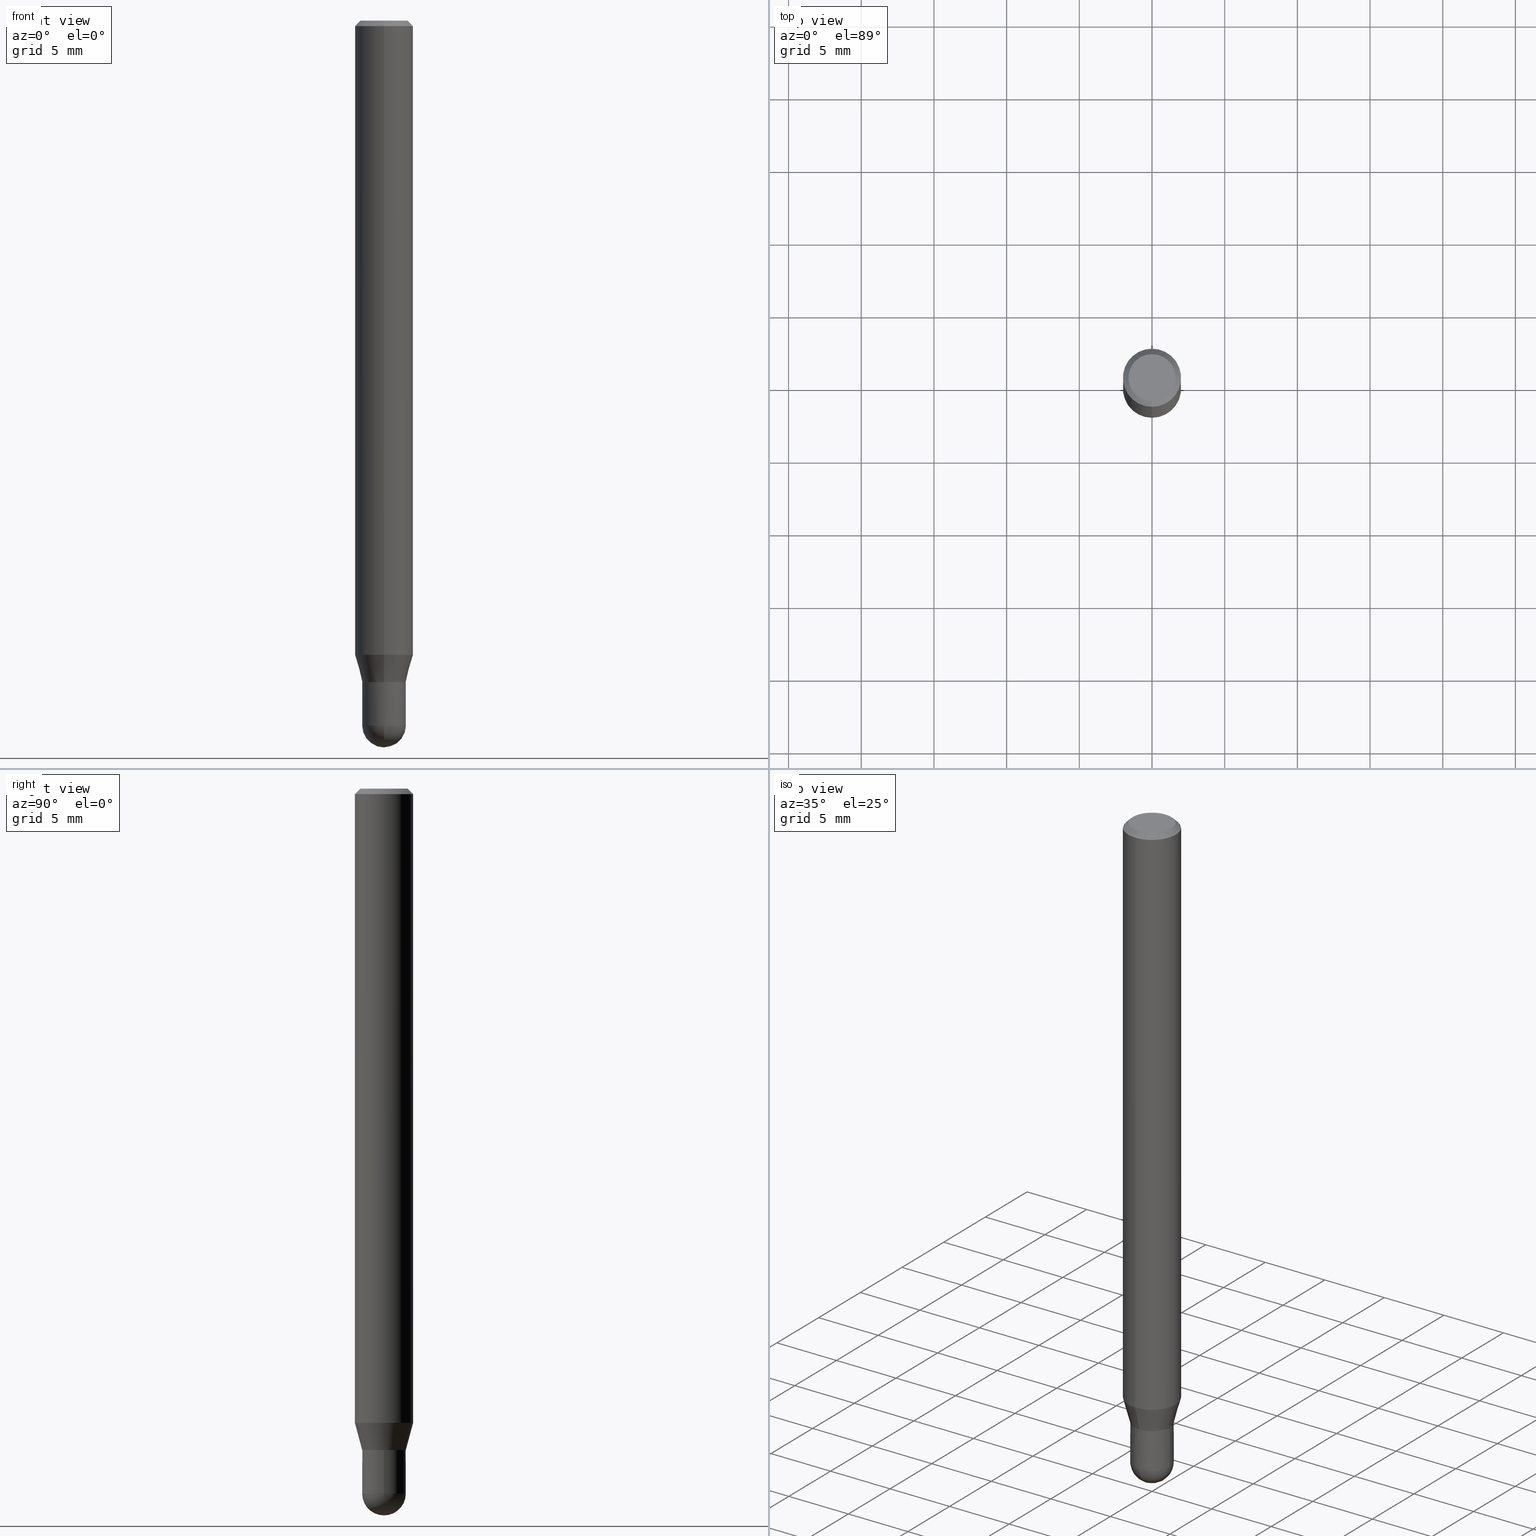
[diagram: canonical four-view strip — front | top / right | iso, engineering-drawing reading convention]
A machine part, canonical four-view strip (front | top / right | iso — engineering-drawing reading convention). The complete STEP part file that produces these views, byte-faithful:
ISO-10303-21;
HEADER;
FILE_DESCRIPTION (( 'STEP AP203' ),
    '1' );
FILE_NAME ('02043.STEP',
    '2024-03-07T19:59:55',
    ( '' ),
    ( '' ),
    'SwSTEP 2.0',
    'SolidWorks 2023',
    '' );
FILE_SCHEMA (( 'CONFIG_CONTROL_DESIGN' ));
ENDSEC;

DATA;
#1 = CARTESIAN_POINT ( 'NONE',  ( 0.000000000000000000, 0.000000000000000000, 0.000000000000000000 ) ) ;
#2 = CIRCLE ( 'NONE', #288, 0.07875000000000000056 ) ;
#3 = CIRCLE ( 'NONE', #26, 0.05904999999999999138 ) ;
#4 = VERTEX_POINT ( 'NONE', #284 ) ;
#5 = CARTESIAN_POINT ( 'NONE',  ( 4.664450655032605070E-29, -6.674040581803010003E-15, -1.909450000000000092 ) ) ;
#6 = EDGE_CURVE ( 'NONE', #66, #133, #134, .T. ) ;
#7 = ORIENTED_EDGE ( 'NONE', *, *, #352, .T. ) ;
#8 = DIRECTION ( 'NONE',  ( 1.000000000000000000, -6.982962677686266711E-15, 4.876176775795936353E-29 ) ) ;
#9 = VERTEX_POINT ( 'NONE', #174 ) ;
#10 = CARTESIAN_POINT ( 'NONE',  ( -4.123439461173292155E-16, -0.05905000000000611149, -1.790799999999999947 ) ) ;
#11 = PLANE ( 'NONE',  #382 ) ;
#12 = CARTESIAN_POINT ( 'NONE',  ( 0.000000000000000000, 0.000000000000000000, 0.000000000000000000 ) ) ;
#13 = ORIENTED_EDGE ( 'NONE', *, *, #223, .F. ) ;
#14 = CARTESIAN_POINT ( 'NONE',  ( 4.380568272519435501E-29, -6.254290522269726388E-15, -1.791300000000000114 ) ) ;
#15 = SECURITY_CLASSIFICATION_LEVEL ( 'unclassified' ) ;
#16 = CARTESIAN_POINT ( 'NONE',  ( -5.499083108677930499E-16, -0.07875000000000004219, -0.01499999999999948944 ) ) ;
#17 = EDGE_CURVE ( 'NONE', #9, #511, #156, .T. ) ;
#18 = FACE_OUTER_BOUND ( 'NONE', #229, .T. ) ;
#19 = VECTOR ( 'NONE', #60, 39.37007874015748143 ) ;
#20 = AXIS2_PLACEMENT_3D ( 'NONE', #479, #48, #165 ) ;
#21 = COORDINATED_UNIVERSAL_TIME_OFFSET ( 5, 0, .BEHIND. ) ;
#22 = DIRECTION ( 'NONE',  ( 6.982962677686265922E-15, 1.000000000000000000, -3.491914578853604397E-15 ) ) ;
#23 = ORIENTED_EDGE ( 'NONE', *, *, #270, .F. ) ;
#24 = PERSON_AND_ORGANIZATION ( #457, #430 ) ;
#25 = ORIENTED_EDGE ( 'NONE', *, *, #438, .T. ) ;
#26 = AXIS2_PLACEMENT_3D ( 'NONE', #512, #148, #471 ) ;
#27 = CARTESIAN_POINT ( 'NONE',  ( -5.749219286118610378E-45, 8.210395684247487674E-31, 2.351259029636103343E-16 ) ) ;
#28 = EDGE_CURVE ( 'NONE', #361, #54, #452, .T. ) ;
#29 = DIRECTION ( 'NONE',  ( 2.445166276302785085E-29, -3.491914578853604397E-15, -1.000000000000000000 ) ) ;
#30 = CARTESIAN_POINT ( 'NONE',  ( -4.088524647784870959E-16, -0.05855000000000625676, -1.791299999999999892 ) ) ;
#31 = AXIS2_PLACEMENT_3D ( 'NONE', #129, #277, #484 ) ;
#32 = DIRECTION ( 'NONE',  ( 6.982962677686264344E-15, 1.000000000000000000, -3.496114991891765576E-15 ) ) ;
#33 = CC_DESIGN_APPROVAL ( #258, ( #364 ) ) ;
#34 = ADVANCED_FACE ( 'NONE', ( #368 ), #489, .T. ) ;
#35 = DIRECTION ( 'NONE',  ( -2.445166276302785085E-29, 3.491914578853604397E-15, 1.000000000000000000 ) ) ;
#36 = EDGE_LOOP ( 'NONE', ( #82, #233, #39, #57 ) ) ;
#37 = ORIENTED_EDGE ( 'NONE', *, *, #204, .F. ) ;
#38 = DIRECTION ( 'NONE',  ( -6.982962677686265922E-15, -1.000000000000000000, 4.665837734695582242E-15 ) ) ;
#39 = ORIENTED_EDGE ( 'NONE', *, *, #211, .F. ) ;
#40 = ADVANCED_FACE ( 'NONE', ( #461 ), #180, .F. ) ;
#41 = SPHERICAL_SURFACE ( 'NONE', #207, 0.05904999999999987342 ) ;
#42 = CONICAL_SURFACE ( 'NONE', #261, 0.05854999999999999788, 0.7853981633974739252 ) ;
#43 = AXIS2_PLACEMENT_3D ( 'NONE', #469, #35, #112 ) ;
#44 = ORIENTED_EDGE ( 'NONE', *, *, #72, .T. ) ;
#45 = EDGE_CURVE ( 'NONE', #201, #511, #450, .T. ) ;
#46 = ORIENTED_EDGE ( 'NONE', *, *, #353, .F. ) ;
#47 = ORIENTED_EDGE ( 'NONE', *, *, #188, .T. ) ;
#48 = DIRECTION ( 'NONE',  ( 0.000000000000000000, 0.000000000000000000, 1.000000000000000000 ) ) ;
#49 = DIRECTION ( 'NONE',  ( -2.445166276302785085E-29, 3.491914578853604397E-15, 1.000000000000000000 ) ) ;
#50 = DESIGN_CONTEXT ( 'detailed design', #109, 'design' ) ;
#51 = CARTESIAN_POINT ( 'NONE',  ( 5.595524044111208086E-16, 0.07874999999999401923, -1.717978599090896230 ) ) ;
#52 = CARTESIAN_POINT ( 'NONE',  ( 4.200743333906961214E-29, -5.999034516323990966E-15, -1.717978599090895786 ) ) ;
#53 = AXIS2_PLACEMENT_3D ( 'NONE', #216, #297, #295 ) ;
#54 = VERTEX_POINT ( 'NONE', #16 ) ;
#55 = DIRECTION ( 'NONE',  ( -2.445468806185136597E-29, 3.491481338843145583E-15, 1.000000000000000000 ) ) ;
#56 = DIRECTION ( 'NONE',  ( -6.982962677686265922E-15, -1.000000000000000000, 3.491914578853604791E-15 ) ) ;
#57 = ORIENTED_EDGE ( 'NONE', *, *, #488, .F. ) ;
#58 = ORIENTED_EDGE ( 'NONE', *, *, #301, .T. ) ;
#59 = EDGE_CURVE ( 'NONE', #243, #65, #268, .T. ) ;
#60 = DIRECTION ( 'NONE',  ( -2.445468806185136877E-29, 3.491481338843145188E-15, 1.000000000000000000 ) ) ;
#61 = DIMENSIONAL_EXPONENTS ( 1.000000000000000000, 0.000000000000000000, 0.000000000000000000, 0.000000000000000000, 0.000000000000000000, 0.000000000000000000, 0.000000000000000000 ) ;
#62 = PRODUCT_RELATED_PRODUCT_CATEGORY ( 'detail', '', ( #280 ) ) ;
#63 = AXIS2_PLACEMENT_3D ( 'NONE', #195, #350, #365 ) ;
#64 = LINE ( 'NONE', #265, #19 ) ;
#65 = VERTEX_POINT ( 'NONE', #422 ) ;
#66 = VERTEX_POINT ( 'NONE', #255 ) ;
#67 = DATE_AND_TIME ( #179, #208 ) ;
#68 = FACE_OUTER_BOUND ( 'NONE', #300, .T. ) ;
#69 = ADVANCED_FACE ( 'NONE', ( #68 ), #11, .F. ) ;
#70 = VECTOR ( 'NONE', #271, 39.37007874015748854 ) ;
#71 = DIRECTION ( 'NONE',  ( 5.024295867788190974E-15, 0.7071067811865681119, 0.7071067811865270336 ) ) ;
#72 = EDGE_CURVE ( 'NONE', #318, #394, #389, .T. ) ;
#73 = DIRECTION ( 'NONE',  ( -6.982962677686264344E-15, -1.000000000000000000, 3.491914578853603608E-15 ) ) ;
#74 = CARTESIAN_POINT ( 'NONE',  ( -4.888104823412213911E-16, -0.06375000000000000111, 4.577354573655275638E-16 ) ) ;
#75 = ADVANCED_FACE ( 'NONE', ( #367 ), #496, .T. ) ;
#76 = AXIS2_PLACEMENT_3D ( 'NONE', #464, #93, #107 ) ;
#77 =( GEOMETRIC_REPRESENTATION_CONTEXT ( 3 ) GLOBAL_UNCERTAINTY_ASSIGNED_CONTEXT ( ( #319 ) ) GLOBAL_UNIT_ASSIGNED_CONTEXT ( ( #435, #482, #230 ) ) REPRESENTATION_CONTEXT ( 'NONE', 'WORKASPACE' ) );
#78 = LINE ( 'NONE', #388, #140 ) ;
#79 = ORIENTED_EDGE ( 'NONE', *, *, #366, .F. ) ;
#80 = CARTESIAN_POINT ( 'NONE',  ( 4.664450655032605070E-29, -6.674040581803010003E-15, -1.909450000000000092 ) ) ;
#81 = CC_DESIGN_PERSON_AND_ORGANIZATION_ASSIGNMENT ( #214, #181, ( #280 ) ) ;
#82 = ORIENTED_EDGE ( 'NONE', *, *, #137, .T. ) ;
#83 = DIRECTION ( 'NONE',  ( -6.982962677686265922E-15, -1.000000000000000000, 4.626330217890375647E-15 ) ) ;
#84 = EDGE_LOOP ( 'NONE', ( #320, #114, #342, #120 ) ) ;
#85 = ORIENTED_EDGE ( 'NONE', *, *, #188, .F. ) ;
#86 = EDGE_LOOP ( 'NONE', ( #478, #58, #44, #164, #85 ) ) ;
#87 = DIRECTION ( 'NONE',  ( -2.445166276302785085E-29, 3.491914578853604397E-15, 1.000000000000000000 ) ) ;
#88 = DIRECTION ( 'NONE',  ( 2.438088387897960049E-29, -3.491481338843145188E-15, -1.000000000000000000 ) ) ;
#89 = DIRECTION ( 'NONE',  ( -2.445166276302784805E-29, 3.491914578853604397E-15, 1.000000000000000000 ) ) ;
#90 = EDGE_LOOP ( 'NONE', ( #417, #287, #393, #128 ) ) ;
#91 = CARTESIAN_POINT ( 'NONE',  ( 4.378803767603028370E-29, -6.253320627811034346E-15, -1.790800000000000169 ) ) ;
#92 = APPROVAL_ROLE ( '' ) ;
#93 = DIRECTION ( 'NONE',  ( -2.445468806185136597E-29, 3.491481338843145583E-15, 1.000000000000000000 ) ) ;
#94 = VECTOR ( 'NONE', #377, 39.37007874015748143 ) ;
#95 = DIRECTION ( 'NONE',  ( 1.000000000000000000, -6.982962677686273810E-15, 0.000000000000000000 ) ) ;
#96 = PRODUCT_DEFINITION_SHAPE ( 'NONE', 'NONE',  #234 ) ;
#97 = AXIS2_PLACEMENT_3D ( 'NONE', #346, #383, #113 ) ;
#98 = APPROVAL_ROLE ( '' ) ;
#99 = ADVANCED_FACE ( 'NONE', ( #328 ), #42, .T. ) ;
#100 = APPROVAL_DATE_TIME ( #331, #258 ) ;
#101 = CYLINDRICAL_SURFACE ( 'NONE', #396, 0.05905000000000006771 ) ;
#102 = ORIENTED_EDGE ( 'NONE', *, *, #211, .T. ) ;
#103 = APPLICATION_PROTOCOL_DEFINITION ( 'international standard', 'config_control_design', 1994, #109 ) ;
#104 = AXIS2_PLACEMENT_3D ( 'NONE', #162, #283, #8 ) ;
#105 = PERSON_AND_ORGANIZATION_ROLE ( 'classification_officer' ) ;
#106 = CARTESIAN_POINT ( 'NONE',  ( 4.664450655032605070E-29, -6.674040581803010003E-15, -1.909450000000000092 ) ) ;
#107 = DIRECTION ( 'NONE',  ( 1.000000000000000000, -6.982962677686273810E-15, 0.000000000000000000 ) ) ;
#108 = EDGE_LOOP ( 'NONE', ( #358, #327, #125, #398 ) ) ;
#109 = APPLICATION_CONTEXT ( 'configuration controlled 3d designs of mechanical parts and assemblies' ) ;
#110 = CARTESIAN_POINT ( 'NONE',  ( -4.195754854662919641E-16, -0.05905000000000660415, -1.909449999999999870 ) ) ;
#111 = ADVANCED_FACE ( 'NONE', ( #458 ), #101, .F. ) ;
#112 = DIRECTION ( 'NONE',  ( -6.982962677686265922E-15, -1.000000000000000000, 4.665837734695582242E-15 ) ) ;
#113 = DIRECTION ( 'NONE',  ( 1.000000000000000000, -6.982962677686273810E-15, 0.000000000000000000 ) ) ;
#114 = ORIENTED_EDGE ( 'NONE', *, *, #366, .T. ) ;
#115 = FACE_OUTER_BOUND ( 'NONE', #90, .T. ) ;
#116 = AXIS2_PLACEMENT_3D ( 'NONE', #169, #88, #347 ) ;
#117 = DIRECTION ( 'NONE',  ( 2.445166276302785085E-29, -3.491914578853604397E-15, -1.000000000000000000 ) ) ;
#118 = CC_DESIGN_PERSON_AND_ORGANIZATION_ASSIGNMENT ( #183, #105, ( #364 ) ) ;
#119 = DIRECTION ( 'NONE',  ( -6.982962677686264344E-15, -1.000000000000000000, 3.496114991891765576E-15 ) ) ;
#120 = ORIENTED_EDGE ( 'NONE', *, *, #360, .F. ) ;
#121 = EDGE_LOOP ( 'NONE', ( #79, #459, #159, #218 ) ) ;
#122 = EDGE_CURVE ( 'NONE', #133, #54, #143, .T. ) ;
#123 = FACE_OUTER_BOUND ( 'NONE', #108, .T. ) ;
#124 = DIRECTION ( 'NONE',  ( -6.982962677686264344E-15, -1.000000000000000000, 3.496114991891765576E-15 ) ) ;
#125 = ORIENTED_EDGE ( 'NONE', *, *, #301, .F. ) ;
#126 = ORIENTED_EDGE ( 'NONE', *, *, #495, .T. ) ;
#127 = CARTESIAN_POINT ( 'NONE',  ( 4.380026350741179351E-29, -6.255066585100460566E-15, -1.791300000000000114 ) ) ;
#128 = ORIENTED_EDGE ( 'NONE', *, *, #122, .T. ) ;
#129 = CARTESIAN_POINT ( 'NONE',  ( 4.380515383996438847E-29, -6.255764968016230581E-15, -1.791499999999999648 ) ) ;
#130 = CONICAL_SURFACE ( 'NONE', #63, 0.05905000000000020649, 0.2617993877991570129 ) ;
#131 = LOCAL_TIME ( 14, 59, 55.00000000000000000, #21 ) ;
#132 = DIRECTION ( 'NONE',  ( -6.982962677686264344E-15, -1.000000000000000000, 3.491914578853604002E-15 ) ) ;
#133 = VERTEX_POINT ( 'NONE', #436 ) ;
#134 = LINE ( 'NONE', #448, #330 ) ;
#135 = PERSON_AND_ORGANIZATION ( #457, #430 ) ;
#136 = DIRECTION ( 'NONE',  ( 2.445166276302784805E-29, -3.491914578853604397E-15, -1.000000000000000000 ) ) ;
#137 = EDGE_CURVE ( 'NONE', #322, #505, #236, .T. ) ;
#138 = AXIS2_PLACEMENT_3D ( 'NONE', #249, #415, #215 ) ;
#139 = DIRECTION ( 'NONE',  ( -2.445166276302785085E-29, 3.491914578853604397E-15, 1.000000000000000000 ) ) ;
#140 = VECTOR ( 'NONE', #71, 39.37007874015748143 ) ;
#141 = PERSON_AND_ORGANIZATION ( #457, #430 ) ;
#142 = DATE_AND_TIME ( #494, #378 ) ;
#143 = CIRCLE ( 'NONE', #299, 0.07875000000000000056 ) ;
#144 = CIRCLE ( 'NONE', #269, 0.05905000000000020649 ) ;
#145 = APPROVAL_STATUS ( 'not_yet_approved' ) ;
#146 = ADVANCED_FACE ( 'NONE', ( #321 ), #41, .T. ) ;
#147 = CARTESIAN_POINT ( 'NONE',  ( -5.499083108677514374E-16, -0.07875000000000596800, -1.717978599090895564 ) ) ;
#148 = DIRECTION ( 'NONE',  ( -2.445468806185136597E-29, 3.491481338843145583E-15, 1.000000000000000000 ) ) ;
#149 = CIRCLE ( 'NONE', #338, 0.05904999999999999832 ) ;
#150 = CC_DESIGN_APPROVAL ( #273, ( #234 ) ) ;
#151 = DIRECTION ( 'NONE',  ( -1.807323732225375499E-15, -0.2588190451025246808, 0.9659258262890673130 ) ) ;
#152 = CARTESIAN_POINT ( 'NONE',  ( -0.05904999999999999832, -6.040974296895546811E-15, -1.791300000000000114 ) ) ;
#153 = CC_DESIGN_PERSON_AND_ORGANIZATION_ASSIGNMENT ( #420, #219, ( #501 ) ) ;
#154 = CARTESIAN_POINT ( 'NONE',  ( 4.195754854663395916E-16, 0.05905000000000006771, -2.061975558813055912E-16 ) ) ;
#155 = ORIENTED_EDGE ( 'NONE', *, *, #176, .F. ) ;
#156 = CIRCLE ( 'NONE', #324, 0.05904999999999992200 ) ;
#157 = VECTOR ( 'NONE', #187, 39.37007874015748143 ) ;
#158 = SPHERICAL_SURFACE ( 'NONE', #397, 0.05904999999999987342 ) ;
#159 = ORIENTED_EDGE ( 'NONE', *, *, #360, .T. ) ;
#160 = DIRECTION ( 'NONE',  ( -1.000000000000000000, 7.105427357601001070E-15, -4.926315508542082329E-29 ) ) ;
#161 = DIRECTION ( 'NONE',  ( -6.982962677686264344E-15, -1.000000000000000000, 3.469013325287953293E-15 ) ) ;
#162 = CARTESIAN_POINT ( 'NONE',  ( 0.000000000000000000, 0.000000000000000000, 0.000000000000000000 ) ) ;
#163 = CARTESIAN_POINT ( 'NONE',  ( 3.667749414454120420E-31, -5.237871868280324701E-17, -0.01499999999999976526 ) ) ;
#164 = ORIENTED_EDGE ( 'NONE', *, *, #404, .T. ) ;
#165 = DIRECTION ( 'NONE',  ( 1.000000000000000000, 0.000000000000000000, 0.000000000000000000 ) ) ;
#166 = CARTESIAN_POINT ( 'NONE',  ( 4.378803767603028370E-29, -6.253320627811034346E-15, -1.790800000000000169 ) ) ;
#167 = AXIS2_PLACEMENT_3D ( 'NONE', #166, #447, #83 ) ;
#168 = EDGE_CURVE ( 'NONE', #65, #337, #64, .T. ) ;
#169 = CARTESIAN_POINT ( 'NONE',  ( 4.123439461174177652E-16, 0.05904999999999373944, -1.791300000000000336 ) ) ;
#170 = VERTEX_POINT ( 'NONE', #462 ) ;
#171 = DIRECTION ( 'NONE',  ( -1.000000000000000000, 6.982962677686265133E-15, -4.883557194083112340E-29 ) ) ;
#172 = LENGTH_MEASURE_WITH_UNIT ( LENGTH_MEASURE( 0.02539999999999999897 ), #475 );
#173 = CARTESIAN_POINT ( 'NONE',  ( 4.380026350741179351E-29, -6.255066585100460566E-15, -1.791300000000000114 ) ) ;
#174 = CARTESIAN_POINT ( 'NONE',  ( 4.195754854663828310E-16, 0.05904999999999373250, -1.790800000000000392 ) ) ;
#175 = DIRECTION ( 'NONE',  ( -2.445468806185136597E-29, 3.491481338843145583E-15, 1.000000000000000000 ) ) ;
#176 = EDGE_CURVE ( 'NONE', #357, #337, #500, .T. ) ;
#177 = CYLINDRICAL_SURFACE ( 'NONE', #53, 0.05905000000000006771 ) ;
#178 = CIRCLE ( 'NONE', #251, 0.05854999999999999788 ) ;
#179 = CALENDAR_DATE ( 2024, 7, 3 ) ;
#180 = PLANE ( 'NONE',  #197 ) ;
#181 = PERSON_AND_ORGANIZATION_ROLE ( 'design_owner' ) ;
#182 = ORIENTED_EDGE ( 'NONE', *, *, #45, .T. ) ;
#183 = PERSON_AND_ORGANIZATION ( #457, #430 ) ;
#184 = AXIS2_PLACEMENT_3D ( 'NONE', #285, #55, #369 ) ;
#185 = APPROVAL_PERSON_ORGANIZATION ( #289, #392, #92 ) ;
#186 = LINE ( 'NONE', #154, #157 ) ;
#187 = DIRECTION ( 'NONE',  ( -2.445166276302785085E-29, 3.491914578853604397E-15, 1.000000000000000000 ) ) ;
#188 = EDGE_CURVE ( 'NONE', #337, #357, #149, .T. ) ;
#189 = ADVANCED_FACE ( 'NONE', ( #401 ), #445, .F. ) ;
#190 = CARTESIAN_POINT ( 'NONE',  ( 4.380515383996438847E-29, -6.255764968016230581E-15, -1.791499999999999648 ) ) ;
#191 = CIRCLE ( 'NONE', #97, 0.05904999999999999138 ) ;
#192 = DIRECTION ( 'NONE',  ( -2.445166276302785085E-29, 3.491914578853604397E-15, 1.000000000000000000 ) ) ;
#193 = ORIENTED_EDGE ( 'NONE', *, *, #137, .F. ) ;
#194 = DIRECTION ( 'NONE',  ( -2.445166276302785085E-29, 3.491914578853604397E-15, 1.000000000000000000 ) ) ;
#195 = CARTESIAN_POINT ( 'NONE',  ( 4.380515383996438847E-29, -6.255764968016230581E-15, -1.791499999999999648 ) ) ;
#196 = EDGE_LOOP ( 'NONE', ( #351, #432, #182, #232 ) ) ;
#197 = AXIS2_PLACEMENT_3D ( 'NONE', #372, #136, #22 ) ;
#198 = CIRCLE ( 'NONE', #43, 0.05854999999999999788 ) ;
#199 = APPLICATION_CONTEXT ( 'configuration controlled 3d designs of mechanical parts and assemblies' ) ;
#200 = DIRECTION ( 'NONE',  ( -2.445166276302785085E-29, 3.491914578853604397E-15, 1.000000000000000000 ) ) ;
#201 = VERTEX_POINT ( 'NONE', #290 ) ;
#202 = DIRECTION ( 'NONE',  ( -2.445166276302785085E-29, 3.491914578853604397E-15, 1.000000000000000000 ) ) ;
#203 = ORIENTED_EDGE ( 'NONE', *, *, #404, .F. ) ;
#204 = EDGE_CURVE ( 'NONE', #505, #322, #304, .T. ) ;
#205 = FACE_OUTER_BOUND ( 'NONE', #272, .T. ) ;
#206 = DIRECTION ( 'NONE',  ( 4.937700262164548042E-15, 0.7071067811865451302, -0.7071067811865499042 ) ) ;
#207 = AXIS2_PLACEMENT_3D ( 'NONE', #5, #171, #256 ) ;
#208 = LOCAL_TIME ( 14, 59, 55.00000000000000000, #502 ) ;
#209 = DIRECTION ( 'NONE',  ( -2.445166276302785085E-29, 3.491914578853604397E-15, 1.000000000000000000 ) ) ;
#210 = DATE_AND_TIME ( #456, #508 ) ;
#211 = EDGE_CURVE ( 'NONE', #54, #133, #2, .T. ) ;
#212 = ORIENTED_EDGE ( 'NONE', *, *, #28, .T. ) ;
#213 = ADVANCED_FACE ( 'NONE', ( #18 ), #177, .F. ) ;
#214 = PERSON_AND_ORGANIZATION ( #457, #430 ) ;
#215 = DIRECTION ( 'NONE',  ( -6.982962677686264344E-15, -1.000000000000000000, 3.491914578853604002E-15 ) ) ;
#216 = CARTESIAN_POINT ( 'NONE',  ( 0.000000000000000000, 0.000000000000000000, 0.000000000000000000 ) ) ;
#217 = CONICAL_SURFACE ( 'NONE', #425, 0.07875000000000000056, 0.7853981633974483900 ) ;
#218 = ORIENTED_EDGE ( 'NONE', *, *, #17, .F. ) ;
#219 = PERSON_AND_ORGANIZATION_ROLE ( 'design_supplier' ) ;
#220 = CARTESIAN_POINT ( 'NONE',  ( 4.380515383996438847E-29, -6.255764968016230581E-15, -1.791499999999999648 ) ) ;
#221 = AXIS2_PLACEMENT_3D ( 'NONE', #12, #403, #333 ) ;
#222 = DIRECTION ( 'NONE',  ( -2.445166276302785085E-29, 3.491914578853604397E-15, 1.000000000000000000 ) ) ;
#223 = EDGE_CURVE ( 'NONE', #170, #318, #375, .T. ) ;
#224 = LINE ( 'NONE', #386, #306 ) ;
#225 = CARTESIAN_POINT ( 'NONE',  ( 3.667749414454120420E-31, -5.237871868280324701E-17, -0.01499999999999976526 ) ) ;
#226 = CARTESIAN_POINT ( 'NONE',  ( 0.05904999999999999832, -4.123439461173740327E-16, 2.879382386107500220E-30 ) ) ;
#227 = EDGE_LOOP ( 'NONE', ( #13, #264, #23, #329 ) ) ;
#228 = DIRECTION ( 'NONE',  ( -2.445166276302785085E-29, 3.491914578853604397E-15, 1.000000000000000000 ) ) ;
#229 = EDGE_LOOP ( 'NONE', ( #274, #7, #440, #423 ) ) ;
#230 =( NAMED_UNIT ( * ) SI_UNIT ( $, .STERADIAN. ) SOLID_ANGLE_UNIT ( ) );
#231 = CARTESIAN_POINT ( 'NONE',  ( 4.200743333906961214E-29, -5.999034516323990966E-15, -1.717978599090895786 ) ) ;
#232 = ORIENTED_EDGE ( 'NONE', *, *, #499, .T. ) ;
#233 = ORIENTED_EDGE ( 'NONE', *, *, #400, .T. ) ;
#234 = PRODUCT_DEFINITION ( 'UNKNOWN', '', #501, #50 ) ;
#235 = ORIENTED_EDGE ( 'NONE', *, *, #316, .T. ) ;
#236 = CIRCLE ( 'NONE', #429, 0.07875000000000000056 ) ;
#237 = VECTOR ( 'NONE', #151, 39.37007874015748854 ) ;
#238 = CARTESIAN_POINT ( 'NONE',  ( -5.499083108677933457E-16, -0.07875000000000000056, 2.749882730847213270E-16 ) ) ;
#239 = LOCAL_TIME ( 14, 59, 55.00000000000000000, #254 ) ;
#240 = CYLINDRICAL_SURFACE ( 'NONE', #104, 0.05904999999999999832 ) ;
#241 = VERTEX_POINT ( 'NONE', #308 ) ;
#242 = DIRECTION ( 'NONE',  ( -6.982962677686265922E-15, -1.000000000000000000, 3.491914578853604397E-15 ) ) ;
#243 = VERTEX_POINT ( 'NONE', #433 ) ;
#244 = AXIS2_PLACEMENT_3D ( 'NONE', #260, #424, #266 ) ;
#245 = CARTESIAN_POINT ( 'NONE',  ( 4.380026350741179351E-29, -6.255066585100460566E-15, -1.791300000000000114 ) ) ;
#246 = DIRECTION ( 'NONE',  ( -4.851104656540964275E-15, -0.7071067811865500152, -0.7071067811865450192 ) ) ;
#247 = DATE_TIME_ROLE ( 'creation_date' ) ;
#248 = EDGE_LOOP ( 'NONE', ( #46, #212, #102, #275 ) ) ;
#249 = CARTESIAN_POINT ( 'NONE',  ( 0.000000000000000000, 0.000000000000000000, 0.000000000000000000 ) ) ;
#250 = EDGE_LOOP ( 'NONE', ( #276, #399, #155, #203, #437 ) ) ;
#251 = AXIS2_PLACEMENT_3D ( 'NONE', #340, #222, #309 ) ;
#252 = EDGE_CURVE ( 'NONE', #434, #241, #198, .T. ) ;
#253 = EDGE_LOOP ( 'NONE', ( #481, #47 ) ) ;
#254 = COORDINATED_UNIVERSAL_TIME_OFFSET ( 5, 0, .BEHIND. ) ;
#255 = CARTESIAN_POINT ( 'NONE',  ( 4.975360907851465623E-16, 0.06375000000000000111, 1.251634856169306932E-17 ) ) ;
#256 = DIRECTION ( 'NONE',  ( 6.982962677686265133E-15, 1.000000000000000000, -4.626330217890379591E-15 ) ) ;
#257 = CC_DESIGN_DATE_AND_TIME_ASSIGNMENT ( #67, #247, ( #234 ) ) ;
#258 = APPROVAL ( #381, 'UNSPECIFIED' ) ;
#259 = EDGE_CURVE ( 'NONE', #4, #505, #428, .T. ) ;
#260 = CARTESIAN_POINT ( 'NONE',  ( 4.664450655032605070E-29, -6.674040581803010003E-15, -1.909450000000000092 ) ) ;
#261 = AXIS2_PLACEMENT_3D ( 'NONE', #245, #414, #411 ) ;
#262 = CONICAL_SURFACE ( 'NONE', #483, 0.05854999999999999788, 0.7853981633974739252 ) ;
#263 = DIRECTION ( 'NONE',  ( -6.982962677686265922E-15, -1.000000000000000000, 4.626330217890353559E-15 ) ) ;
#264 = ORIENTED_EDGE ( 'NONE', *, *, #305, .T. ) ;
#265 = CARTESIAN_POINT ( 'NONE',  ( -0.05904999999999999832, 4.195754854663391478E-16, -2.904631170795521892E-30 ) ) ;
#266 = DIRECTION ( 'NONE',  ( 6.982962677686265922E-15, 1.000000000000000000, 0.000000000000000000 ) ) ;
#267 = LINE ( 'NONE', #226, #506 ) ;
#268 = CIRCLE ( 'NONE', #76, 0.05904999999999999138 ) ;
#269 = AXIS2_PLACEMENT_3D ( 'NONE', #220, #194, #263 ) ;
#270 = EDGE_CURVE ( 'NONE', #394, #243, #191, .T. ) ;
#271 = DIRECTION ( 'NONE',  ( 1.839019923739646069E-15, 0.2588190451025313976, 0.9659258262890653146 ) ) ;
#272 = EDGE_LOOP ( 'NONE', ( #307, #279, #348, #465 ) ) ;
#273 = APPROVAL ( #454, 'UNSPECIFIED' ) ;
#274 = ORIENTED_EDGE ( 'NONE', *, *, #438, .F. ) ;
#275 = ORIENTED_EDGE ( 'NONE', *, *, #6, .F. ) ;
#276 = ORIENTED_EDGE ( 'NONE', *, *, #59, .T. ) ;
#277 = DIRECTION ( 'NONE',  ( -2.445166276302785085E-29, 3.491914578853604397E-15, 1.000000000000000000 ) ) ;
#278 = EDGE_CURVE ( 'NONE', #201, #322, #466, .T. ) ;
#279 = ORIENTED_EDGE ( 'NONE', *, *, #204, .T. ) ;
#280 = PRODUCT ( '02043', '02043', '', ( #444 ) ) ;
#281 = AXIS2_PLACEMENT_3D ( 'NONE', #106, #160, #503 ) ;
#282 = APPLICATION_PROTOCOL_DEFINITION ( 'international standard', 'config_control_design', 1994, #199 ) ;
#283 = DIRECTION ( 'NONE',  ( -2.445468806185136597E-29, 3.491481338843145583E-15, 1.000000000000000000 ) ) ;
#284 = CARTESIAN_POINT ( 'NONE',  ( 4.895639449387525347E-16, 0.05904999999999394761, -1.791500000000000092 ) ) ;
#285 = CARTESIAN_POINT ( 'NONE',  ( 4.380568272519435501E-29, -6.254290522269726388E-15, -1.791300000000000114 ) ) ;
#286 = DIRECTION ( 'NONE',  ( -1.000000000000000000, 6.982962677686265133E-15, -4.883557194083112340E-29 ) ) ;
#287 = ORIENTED_EDGE ( 'NONE', *, *, #495, .F. ) ;
#288 = AXIS2_PLACEMENT_3D ( 'NONE', #311, #474, #119 ) ;
#289 = PERSON_AND_ORGANIZATION ( #457, #430 ) ;
#290 = CARTESIAN_POINT ( 'NONE',  ( -4.123439461173316314E-16, -0.05905000000000645843, -1.791499999999999426 ) ) ;
#291 = CIRCLE ( 'NONE', #339, 0.06375000000000000111 ) ;
#292 = CARTESIAN_POINT ( 'NONE',  ( 4.669500411970209334E-29, -6.666809042454044642E-15, -1.909450000000000092 ) ) ;
#293 = COORDINATED_UNIVERSAL_TIME_OFFSET ( 5, 0, .BEHIND. ) ;
#294 = COORDINATED_UNIVERSAL_TIME_OFFSET ( 5, 0, .BEHIND. ) ;
#295 = DIRECTION ( 'NONE',  ( -6.982962677686265922E-15, -1.000000000000000000, 3.491914578853604791E-15 ) ) ;
#296 = APPROVAL_ROLE ( '' ) ;
#297 = DIRECTION ( 'NONE',  ( -2.445166276302785085E-29, 3.491914578853604397E-15, 1.000000000000000000 ) ) ;
#298 = CARTESIAN_POINT ( 'NONE',  ( -4.123439461173744764E-16, -0.05905000000000006771, 2.061975558813055912E-16 ) ) ;
#299 = AXIS2_PLACEMENT_3D ( 'NONE', #163, #228, #124 ) ;
#300 = EDGE_LOOP ( 'NONE', ( #477, #314 ) ) ;
#301 = EDGE_CURVE ( 'NONE', #65, #318, #3, .T. ) ;
#302 = CARTESIAN_POINT ( 'NONE',  ( 4.195754854663843594E-16, 0.05904999999999394761, -1.791500000000000092 ) ) ;
#303 = CARTESIAN_POINT ( 'NONE',  ( 0.05904999999999999138, -6.872893728479260435E-15, -1.909450000000000092 ) ) ;
#304 = CIRCLE ( 'NONE', #407, 0.07875000000000000056 ) ;
#305 = EDGE_CURVE ( 'NONE', #170, #243, #443, .T. ) ;
#306 = VECTOR ( 'NONE', #341, 39.37007874015748143 ) ;
#307 = ORIENTED_EDGE ( 'NONE', *, *, #400, .F. ) ;
#308 = CARTESIAN_POINT ( 'NONE',  ( 4.177991286269823325E-16, 0.05854999999999373900, -1.791300000000000336 ) ) ;
#309 = DIRECTION ( 'NONE',  ( -6.982962677686265922E-15, -1.000000000000000000, 4.665837734695582242E-15 ) ) ;
#310 = LINE ( 'NONE', #473, #463 ) ;
#311 = CARTESIAN_POINT ( 'NONE',  ( 3.667749414454120420E-31, -5.237871868280324701E-17, -0.01499999999999976526 ) ) ;
#312 = MANIFOLD_SOLID_BREP ( 'Body-Move/Copy2[2]', #344 ) ;
#313 = CIRCLE ( 'NONE', #354, 0.05905000000000020649 ) ;
#314 = ORIENTED_EDGE ( 'NONE', *, *, #373, .F. ) ;
#315 = CC_DESIGN_SECURITY_CLASSIFICATION ( #364, ( #501 ) ) ;
#316 = EDGE_CURVE ( 'NONE', #201, #4, #144, .T. ) ;
#317 = FACE_OUTER_BOUND ( 'NONE', #86, .T. ) ;
#318 = VERTEX_POINT ( 'NONE', #110 ) ;
#319 = UNCERTAINTY_MEASURE_WITH_UNIT (LENGTH_MEASURE( 1.000000000000000082E-05 ), #435, 'distance_accuracy_value', 'NONE');
#320 = ORIENTED_EDGE ( 'NONE', *, *, #252, .T. ) ;
#321 = FACE_OUTER_BOUND ( 'NONE', #227, .T. ) ;
#322 = VERTEX_POINT ( 'NONE', #147 ) ;
#323 = DIRECTION ( 'NONE',  ( -2.445166276302785085E-29, 3.491914578853604397E-15, 1.000000000000000000 ) ) ;
#324 = AXIS2_PLACEMENT_3D ( 'NONE', #91, #209, #412 ) ;
#325 = CIRCLE ( 'NONE', #167, 0.05904999999999992200 ) ;
#326 = DIRECTION ( 'NONE',  ( -2.445166276302785085E-29, 3.491914578853604397E-15, 1.000000000000000000 ) ) ;
#327 = ORIENTED_EDGE ( 'NONE', *, *, #223, .T. ) ;
#328 = FACE_OUTER_BOUND ( 'NONE', #121, .T. ) ;
#329 = ORIENTED_EDGE ( 'NONE', *, *, #72, .F. ) ;
#330 = VECTOR ( 'NONE', #206, 39.37007874015748143 ) ;
#331 = DATE_AND_TIME ( #421, #239 ) ;
#332 = CONICAL_SURFACE ( 'NONE', #31, 0.05905000000000020649, 0.2617993877991570129 ) ;
#333 = DIRECTION ( 'NONE',  ( 1.000000000000000000, -6.982962677686266711E-15, 4.876176775795936353E-29 ) ) ;
#334 = SHAPE_DEFINITION_REPRESENTATION ( #96, #370 ) ;
#335 = ADVANCED_FACE ( 'NONE', ( #115 ), #493, .T. ) ;
#336 = APPROVAL_DATE_TIME ( #460, #392 ) ;
#337 = VERTEX_POINT ( 'NONE', #152 ) ;
#338 = AXIS2_PLACEMENT_3D ( 'NONE', #14, #175, #490 ) ;
#339 = AXIS2_PLACEMENT_3D ( 'NONE', #27, #192, #73 ) ;
#340 = CARTESIAN_POINT ( 'NONE',  ( 4.380026350741179351E-29, -6.255066585100460566E-15, -1.791300000000000114 ) ) ;
#341 = DIRECTION ( 'NONE',  ( -2.445166276302785085E-29, 3.491914578853604397E-15, 1.000000000000000000 ) ) ;
#342 = ORIENTED_EDGE ( 'NONE', *, *, #499, .F. ) ;
#343 = DIRECTION ( 'NONE',  ( -2.445166276302785085E-29, 3.491914578853604397E-15, 1.000000000000000000 ) ) ;
#344 = CLOSED_SHELL ( 'NONE', ( #213, #446, #385, #34, #455, #453, #467, #335, #40, #69, #99, #111 ) ) ;
#345 = DIRECTION ( 'NONE',  ( -4.937700262164674260E-15, -0.7071067811865632269, 0.7071067811865319186 ) ) ;
#346 = CARTESIAN_POINT ( 'NONE',  ( 4.669500411970209334E-29, -6.666809042454044642E-15, -1.909450000000000092 ) ) ;
#347 = DIRECTION ( 'NONE',  ( -1.000000000000000000, 6.982962677686265922E-15, -4.876176775795935793E-29 ) ) ;
#348 = ORIENTED_EDGE ( 'NONE', *, *, #488, .T. ) ;
#349 = CC_DESIGN_PERSON_AND_ORGANIZATION_ASSIGNMENT ( #141, #371, ( #234 ) ) ;
#350 = DIRECTION ( 'NONE',  ( -2.445166276302785085E-29, 3.491914578853604397E-15, 1.000000000000000000 ) ) ;
#351 = ORIENTED_EDGE ( 'NONE', *, *, #352, .F. ) ;
#352 = EDGE_CURVE ( 'NONE', #4, #9, #186, .T. ) ;
#353 = EDGE_CURVE ( 'NONE', #361, #66, #291, .T. ) ;
#354 = AXIS2_PLACEMENT_3D ( 'NONE', #190, #343, #507 ) ;
#355 = CARTESIAN_POINT ( 'NONE',  ( -5.749219286118610378E-45, 8.210395684247487674E-31, 2.351259029636103343E-16 ) ) ;
#356 = DIRECTION ( 'NONE',  ( -6.982962677686264344E-15, -1.000000000000000000, 3.469013325287953293E-15 ) ) ;
#357 = VERTEX_POINT ( 'NONE', #427 ) ;
#358 = ORIENTED_EDGE ( 'NONE', *, *, #305, .F. ) ;
#359 = FACE_OUTER_BOUND ( 'NONE', #491, .T. ) ;
#360 = EDGE_CURVE ( 'NONE', #434, #511, #310, .T. ) ;
#361 = VERTEX_POINT ( 'NONE', #74 ) ;
#362 = FACE_OUTER_BOUND ( 'NONE', #395, .T. ) ;
#363 = CARTESIAN_POINT ( 'NONE',  ( -5.402642173245076924E-16, -0.07875000000000004219, -0.01499999999999948944 ) ) ;
#364 = SECURITY_CLASSIFICATION ( '', '', #15 ) ;
#365 = DIRECTION ( 'NONE',  ( -6.982962677686265922E-15, -1.000000000000000000, 4.626330217890353559E-15 ) ) ;
#366 = EDGE_CURVE ( 'NONE', #241, #9, #78, .T. ) ;
#367 = FACE_OUTER_BOUND ( 'NONE', #250, .T. ) ;
#368 = FACE_OUTER_BOUND ( 'NONE', #36, .T. ) ;
#369 = DIRECTION ( 'NONE',  ( 1.000000000000000000, -6.982962677686273021E-15, 0.000000000000000000 ) ) ;
#370 = ADVANCED_BREP_SHAPE_REPRESENTATION ( '02043', ( #487, #312, #20 ), #77 ) ;
#371 = PERSON_AND_ORGANIZATION_ROLE ( 'creator' ) ;
#372 = CARTESIAN_POINT ( 'NONE',  ( 4.451638707024993845E-16, 0.06375000000000000111, -1.050466029201120994E-16 ) ) ;
#373 = EDGE_CURVE ( 'NONE', #241, #434, #178, .T. ) ;
#374 = DIRECTION ( 'NONE',  ( -2.445468806185136597E-29, 3.491481338843145583E-15, 1.000000000000000000 ) ) ;
#375 = CIRCLE ( 'NONE', #281, 0.05904999999999987342 ) ;
#376 = APPROVAL_DATE_TIME ( #142, #273 ) ;
#377 = DIRECTION ( 'NONE',  ( -2.445166276302785085E-29, 3.491914578853604397E-15, 1.000000000000000000 ) ) ;
#378 = LOCAL_TIME ( 14, 59, 55.00000000000000000, #294 ) ;
#379 = CC_DESIGN_PERSON_AND_ORGANIZATION_ASSIGNMENT ( #24, #410, ( #501 ) ) ;
#380 = EDGE_LOOP ( 'NONE', ( #126, #439 ) ) ;
#381 = APPROVAL_STATUS ( 'not_yet_approved' ) ;
#382 = AXIS2_PLACEMENT_3D ( 'NONE', #173, #89, #242 ) ;
#383 = DIRECTION ( 'NONE',  ( -2.445468806185136597E-29, 3.491481338843145583E-15, 1.000000000000000000 ) ) ;
#384 = CIRCLE ( 'NONE', #408, 0.06375000000000000111 ) ;
#385 = ADVANCED_FACE ( 'NONE', ( #426 ), #217, .T. ) ;
#386 = CARTESIAN_POINT ( 'NONE',  ( 5.595524044110787031E-16, 0.07875000000000000056, -2.749882730847213270E-16 ) ) ;
#387 = DIRECTION ( 'NONE',  ( -2.445468806185136877E-29, 3.491481338843145188E-15, 1.000000000000000000 ) ) ;
#388 = CARTESIAN_POINT ( 'NONE',  ( 4.160227717875823762E-16, 0.05854999999999373900, -1.791300000000000336 ) ) ;
#389 = CIRCLE ( 'NONE', #418, 0.05904999999999999138 ) ;
#390 = VECTOR ( 'NONE', #49, 39.37007874015748143 ) ;
#391 = DIRECTION ( 'NONE',  ( 6.982962677686264344E-15, 1.000000000000000000, -3.496114991891765576E-15 ) ) ;
#392 = APPROVAL ( #145, 'UNSPECIFIED' ) ;
#393 = ORIENTED_EDGE ( 'NONE', *, *, #6, .T. ) ;
#394 = VERTEX_POINT ( 'NONE', #303 ) ;
#395 = EDGE_LOOP ( 'NONE', ( #235, #485, #193, #497 ) ) ;
#396 = AXIS2_PLACEMENT_3D ( 'NONE', #416, #139, #56 ) ;
#397 = AXIS2_PLACEMENT_3D ( 'NONE', #80, #286, #486 ) ;
#398 = ORIENTED_EDGE ( 'NONE', *, *, #59, .F. ) ;
#399 = ORIENTED_EDGE ( 'NONE', *, *, #168, .T. ) ;
#400 = EDGE_CURVE ( 'NONE', #505, #133, #224, .T. ) ;
#401 = FACE_OUTER_BOUND ( 'NONE', #253, .T. ) ;
#402 = LINE ( 'NONE', #238, #390 ) ;
#403 = DIRECTION ( 'NONE',  ( -2.445468806185136597E-29, 3.491481338843145583E-15, 1.000000000000000000 ) ) ;
#404 = EDGE_CURVE ( 'NONE', #394, #357, #267, .T. ) ;
#405 = DIRECTION ( 'NONE',  ( -6.982962677686264344E-15, -1.000000000000000000, 3.491914578853603608E-15 ) ) ;
#406 = ORIENTED_EDGE ( 'NONE', *, *, #259, .F. ) ;
#407 = AXIS2_PLACEMENT_3D ( 'NONE', #52, #202, #161 ) ;
#408 = AXIS2_PLACEMENT_3D ( 'NONE', #355, #323, #405 ) ;
#409 = CC_DESIGN_APPROVAL ( #392, ( #501 ) ) ;
#410 = PERSON_AND_ORGANIZATION_ROLE ( 'creator' ) ;
#411 = DIRECTION ( 'NONE',  ( -6.982962677686265922E-15, -1.000000000000000000, 4.665837734695582242E-15 ) ) ;
#412 = DIRECTION ( 'NONE',  ( -6.982962677686265922E-15, -1.000000000000000000, 4.626330217890375647E-15 ) ) ;
#413 = DATE_TIME_ROLE ( 'classification_date' ) ;
#414 = DIRECTION ( 'NONE',  ( -2.445166276302785085E-29, 3.491914578853604397E-15, 1.000000000000000000 ) ) ;
#415 = DIRECTION ( 'NONE',  ( -2.445166276302785085E-29, 3.491914578853604397E-15, 1.000000000000000000 ) ) ;
#416 = CARTESIAN_POINT ( 'NONE',  ( 0.000000000000000000, 0.000000000000000000, 0.000000000000000000 ) ) ;
#417 = ORIENTED_EDGE ( 'NONE', *, *, #28, .F. ) ;
#418 = AXIS2_PLACEMENT_3D ( 'NONE', #292, #374, #95 ) ;
#419 = AXIS2_PLACEMENT_3D ( 'NONE', #1, #326, #132 ) ;
#420 = PERSON_AND_ORGANIZATION ( #457, #430 ) ;
#421 = CALENDAR_DATE ( 2024, 7, 3 ) ;
#422 = CARTESIAN_POINT ( 'NONE',  ( -0.05904999999999999138, -6.040974296895546811E-15, -1.909450000000000092 ) ) ;
#423 = ORIENTED_EDGE ( 'NONE', *, *, #45, .F. ) ;
#424 = DIRECTION ( 'NONE',  ( 1.000000000000000000, -6.982962677686265922E-15, 4.883557194083112340E-29 ) ) ;
#425 = AXIS2_PLACEMENT_3D ( 'NONE', #225, #29, #32 ) ;
#426 = FACE_OUTER_BOUND ( 'NONE', #248, .T. ) ;
#427 = CARTESIAN_POINT ( 'NONE',  ( 0.05904999999999999832, -6.666634468387101308E-15, -1.791300000000000114 ) ) ;
#428 = LINE ( 'NONE', #302, #70 ) ;
#429 = AXIS2_PLACEMENT_3D ( 'NONE', #231, #200, #356 ) ;
#430 = ORGANIZATION ( 'UNSPECIFIED', 'UNSPECIFIED', '' ) ;
#431 = APPROVAL_PERSON_ORGANIZATION ( #498, #258, #296 ) ;
#432 = ORIENTED_EDGE ( 'NONE', *, *, #316, .F. ) ;
#433 = CARTESIAN_POINT ( 'NONE',  ( 4.123439461174201318E-16, 0.05904999999999325372, -1.909450000000000314 ) ) ;
#434 = VERTEX_POINT ( 'NONE', #30 ) ;
#435 =( CONVERSION_BASED_UNIT ( 'INCH', #172 ) LENGTH_UNIT ( ) NAMED_UNIT ( #61 ) );
#436 = CARTESIAN_POINT ( 'NONE',  ( 5.595524044111210058E-16, 0.07874999999999994504, -0.01500000000000004108 ) ) ;
#437 = ORIENTED_EDGE ( 'NONE', *, *, #270, .T. ) ;
#438 = EDGE_CURVE ( 'NONE', #4, #201, #313, .T. ) ;
#439 = ORIENTED_EDGE ( 'NONE', *, *, #353, .T. ) ;
#440 = ORIENTED_EDGE ( 'NONE', *, *, #17, .T. ) ;
#441 = CYLINDRICAL_SURFACE ( 'NONE', #419, 0.07875000000000000056 ) ;
#442 = AXIS2_PLACEMENT_3D ( 'NONE', #504, #117, #391 ) ;
#443 = CIRCLE ( 'NONE', #244, 0.05904999999999987342 ) ;
#444 = MECHANICAL_CONTEXT ( 'NONE', #199, 'mechanical' ) ;
#445 = PLANE ( 'NONE',  #116 ) ;
#446 = ADVANCED_FACE ( 'NONE', ( #510 ), #262, .T. ) ;
#447 = DIRECTION ( 'NONE',  ( -2.445166276302785085E-29, 3.491914578853604397E-15, 1.000000000000000000 ) ) ;
#448 = CARTESIAN_POINT ( 'NONE',  ( 5.499083108677937401E-16, 0.07874999999999994504, -0.01500000000000004108 ) ) ;
#449 = CALENDAR_DATE ( 2024, 7, 3 ) ;
#450 = LINE ( 'NONE', #298, #94 ) ;
#451 = CC_DESIGN_DATE_AND_TIME_ASSIGNMENT ( #210, #413, ( #364 ) ) ;
#452 = LINE ( 'NONE', #363, #492 ) ;
#453 = ADVANCED_FACE ( 'NONE', ( #359 ), #130, .T. ) ;
#454 = APPROVAL_STATUS ( 'not_yet_approved' ) ;
#455 = ADVANCED_FACE ( 'NONE', ( #362 ), #332, .T. ) ;
#456 = CALENDAR_DATE ( 2024, 7, 3 ) ;
#457 = PERSON ( 'UNSPECIFIED', 'UNSPECIFIED', 'UNSPECIFIED', ('UNSPECIFIED'), ('UNSPECIFIED'), ('UNSPECIFIED') ) ;
#458 = FACE_OUTER_BOUND ( 'NONE', #196, .T. ) ;
#459 = ORIENTED_EDGE ( 'NONE', *, *, #373, .T. ) ;
#460 = DATE_AND_TIME ( #449, #131 ) ;
#461 = FACE_OUTER_BOUND ( 'NONE', #380, .T. ) ;
#462 = CARTESIAN_POINT ( 'NONE',  ( 4.811380466506639703E-29, -6.876596785187214388E-15, -1.968499999999999694 ) ) ;
#463 = VECTOR ( 'NONE', #345, 39.37007874015748143 ) ;
#464 = CARTESIAN_POINT ( 'NONE',  ( 4.669500411970209334E-29, -6.666809042454044642E-15, -1.909450000000000092 ) ) ;
#465 = ORIENTED_EDGE ( 'NONE', *, *, #122, .F. ) ;
#466 = LINE ( 'NONE', #472, #237 ) ;
#467 = ADVANCED_FACE ( 'NONE', ( #205 ), #441, .T. ) ;
#468 = CLOSED_SHELL ( 'NONE', ( #75, #480, #189, #146, #476 ) ) ;
#469 = CARTESIAN_POINT ( 'NONE',  ( 4.380026350741179351E-29, -6.255066585100460566E-15, -1.791300000000000114 ) ) ;
#470 = APPROVAL_PERSON_ORGANIZATION ( #135, #273, #98 ) ;
#471 = DIRECTION ( 'NONE',  ( 1.000000000000000000, -6.982962677686273810E-15, 0.000000000000000000 ) ) ;
#472 = CARTESIAN_POINT ( 'NONE',  ( -4.123439461173316314E-16, -0.05905000000000645843, -1.791499999999999426 ) ) ;
#473 = CARTESIAN_POINT ( 'NONE',  ( -4.088524647784870959E-16, -0.05855000000000625676, -1.791299999999999892 ) ) ;
#474 = DIRECTION ( 'NONE',  ( -2.445166276302785085E-29, 3.491914578853604397E-15, 1.000000000000000000 ) ) ;
#475 =( LENGTH_UNIT ( ) NAMED_UNIT ( * ) SI_UNIT ( $, .METRE. ) );
#476 = ADVANCED_FACE ( 'NONE', ( #317 ), #240, .T. ) ;
#477 = ORIENTED_EDGE ( 'NONE', *, *, #252, .F. ) ;
#478 = ORIENTED_EDGE ( 'NONE', *, *, #168, .F. ) ;
#479 = CARTESIAN_POINT ( 'NONE',  ( 0.000000000000000000, 0.000000000000000000, 0.000000000000000000 ) ) ;
#480 = ADVANCED_FACE ( 'NONE', ( #123 ), #158, .T. ) ;
#481 = ORIENTED_EDGE ( 'NONE', *, *, #176, .T. ) ;
#482 =( NAMED_UNIT ( * ) PLANE_ANGLE_UNIT ( ) SI_UNIT ( $, .RADIAN. ) );
#483 = AXIS2_PLACEMENT_3D ( 'NONE', #127, #87, #38 ) ;
#484 = DIRECTION ( 'NONE',  ( -6.982962677686265922E-15, -1.000000000000000000, 4.626330217890353559E-15 ) ) ;
#485 = ORIENTED_EDGE ( 'NONE', *, *, #259, .T. ) ;
#486 = DIRECTION ( 'NONE',  ( 6.982962677686265133E-15, 1.000000000000000000, -4.626330217890379591E-15 ) ) ;
#487 = MANIFOLD_SOLID_BREP ( 'Body-Move/Copy2[1]', #468 ) ;
#488 = EDGE_CURVE ( 'NONE', #322, #54, #402, .T. ) ;
#489 = CYLINDRICAL_SURFACE ( 'NONE', #138, 0.07875000000000000056 ) ;
#490 = DIRECTION ( 'NONE',  ( 1.000000000000000000, -6.982962677686273021E-15, 0.000000000000000000 ) ) ;
#491 = EDGE_LOOP ( 'NONE', ( #406, #25, #509, #37 ) ) ;
#492 = VECTOR ( 'NONE', #246, 39.37007874015748143 ) ;
#493 = CONICAL_SURFACE ( 'NONE', #442, 0.07875000000000000056, 0.7853981633974483900 ) ;
#494 = CALENDAR_DATE ( 2024, 7, 3 ) ;
#495 = EDGE_CURVE ( 'NONE', #66, #361, #384, .T. ) ;
#496 = CYLINDRICAL_SURFACE ( 'NONE', #221, 0.05904999999999999832 ) ;
#497 = ORIENTED_EDGE ( 'NONE', *, *, #278, .F. ) ;
#498 = PERSON_AND_ORGANIZATION ( #457, #430 ) ;
#499 = EDGE_CURVE ( 'NONE', #511, #9, #325, .T. ) ;
#500 = CIRCLE ( 'NONE', #184, 0.05904999999999999832 ) ;
#501 = PRODUCT_DEFINITION_FORMATION_WITH_SPECIFIED_SOURCE ( 'ANY', '', #280, .NOT_KNOWN. ) ;
#502 = COORDINATED_UNIVERSAL_TIME_OFFSET ( 5, 0, .BEHIND. ) ;
#503 = DIRECTION ( 'NONE',  ( -7.105427357601000281E-15, -1.000000000000000000, 0.000000000000000000 ) ) ;
#504 = CARTESIAN_POINT ( 'NONE',  ( 3.667749414454120420E-31, -5.237871868280324701E-17, -0.01499999999999976526 ) ) ;
#505 = VERTEX_POINT ( 'NONE', #51 ) ;
#506 = VECTOR ( 'NONE', #387, 39.37007874015748143 ) ;
#507 = DIRECTION ( 'NONE',  ( -6.982962677686265922E-15, -1.000000000000000000, 4.626330217890353559E-15 ) ) ;
#508 = LOCAL_TIME ( 14, 59, 55.00000000000000000, #293 ) ;
#509 = ORIENTED_EDGE ( 'NONE', *, *, #278, .T. ) ;
#510 = FACE_OUTER_BOUND ( 'NONE', #84, .T. ) ;
#511 = VERTEX_POINT ( 'NONE', #10 ) ;
#512 = CARTESIAN_POINT ( 'NONE',  ( 4.669500411970209334E-29, -6.666809042454044642E-15, -1.909450000000000092 ) ) ;
ENDSEC;
END-ISO-10303-21;
